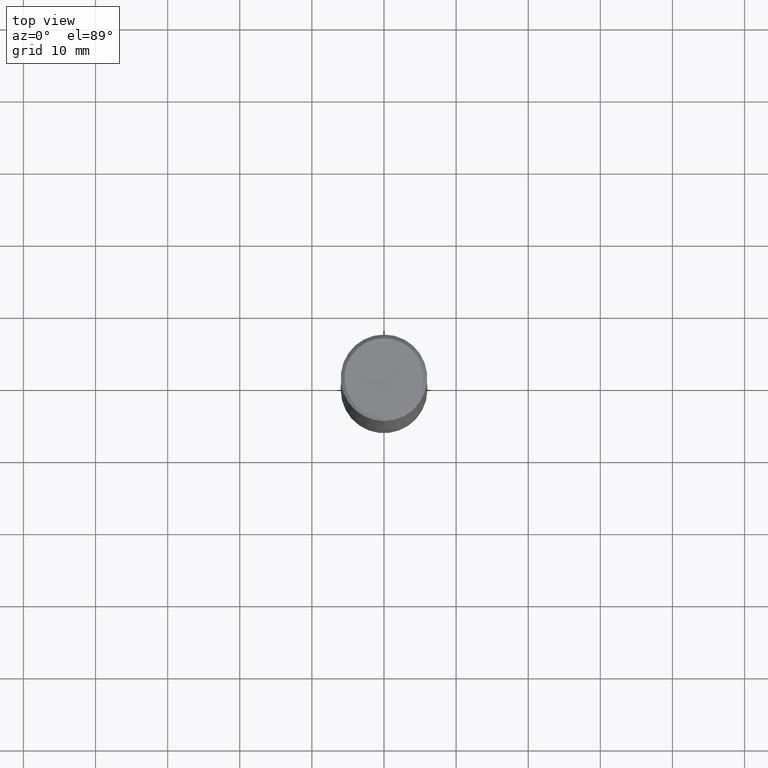
[diagram: clean part render]
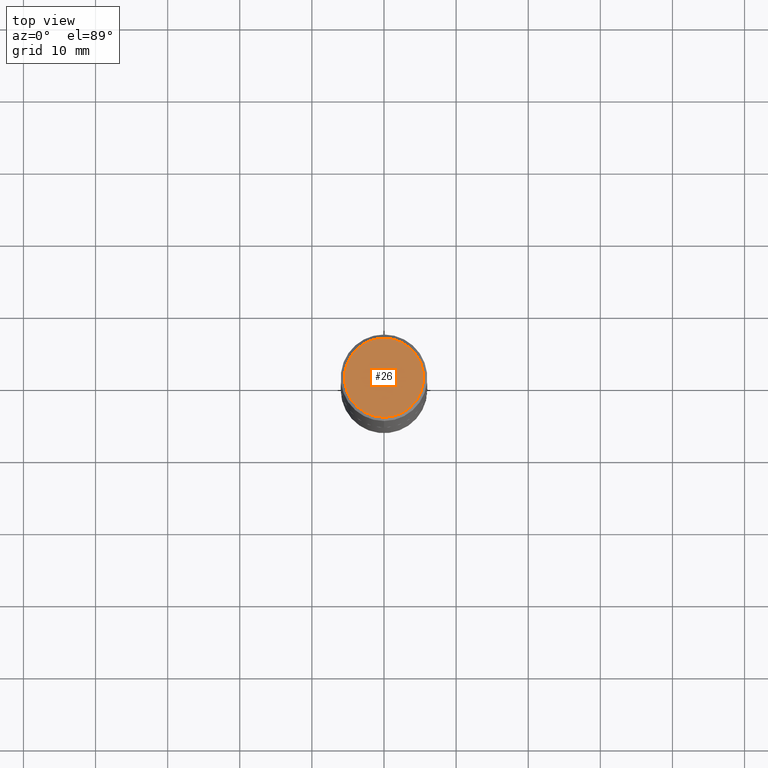
[diagram: same view with one face highlighted and labeled with its STEP entity id]
A machine part, top view. The second image highlights one B-rep face of the part: STEP entity #26.
In plain terms, the highlighted planar face has unit normal (0, -0, -1).
Its self-contained STEP definition (entity closure, byte-faithful):
#2 = VERTEX_POINT ( 'NONE', #379 ) ;
#4 = VERTEX_POINT ( 'NONE', #373 ) ;
#26 = ADVANCED_FACE ( 'NONE', ( #127 ), #376, .F. ) ;
#31 = AXIS2_PLACEMENT_3D ( 'NONE', #318, #33, #197 ) ;
#33 = DIRECTION ( 'NONE',  ( -2.445136991832956056E-29, 3.491956515881168560E-15, 1.000000000000000000 ) ) ;
#58 = CARTESIAN_POINT ( 'NONE',  ( 1.509716530915770915E-15, 0.2162000000000000310, -7.741179383011501957E-16 ) ) ;
#69 = CARTESIAN_POINT ( 'NONE',  ( 9.368268317429773980E-46, -1.337903998951356127E-31, -3.831387913528317122E-17 ) ) ;
#82 = CIRCLE ( 'NONE', #31, 0.2162000000000000310 ) ;
#127 = FACE_OUTER_BOUND ( 'NONE', #365, .T. ) ;
#197 = DIRECTION ( 'NONE',  ( -6.982962677686265922E-15, -1.000000000000000000, 3.491956515881168955E-15 ) ) ;
#214 = DIRECTION ( 'NONE',  ( 6.982962677686265922E-15, 1.000000000000000000, -3.491956515881168560E-15 ) ) ;
#218 = CIRCLE ( 'NONE', #352, 0.2162000000000000310 ) ;
#231 = EDGE_CURVE ( 'NONE', #2, #4, #82, .T. ) ;
#268 = DIRECTION ( 'NONE',  ( -2.445136991832956056E-29, 3.491956515881168560E-15, 1.000000000000000000 ) ) ;
#270 = DIRECTION ( 'NONE',  ( -6.982962677686265922E-15, -1.000000000000000000, 3.491956515881168955E-15 ) ) ;
#312 = DIRECTION ( 'NONE',  ( 2.445136991832955495E-29, -3.491956515881168560E-15, -1.000000000000000000 ) ) ;
#318 = CARTESIAN_POINT ( 'NONE',  ( 9.368268317429773980E-46, -1.337903998951356127E-31, -3.831387913528317122E-17 ) ) ;
#329 = ORIENTED_EDGE ( 'NONE', *, *, #380, .T. ) ;
#352 = AXIS2_PLACEMENT_3D ( 'NONE', #69, #268, #270 ) ;
#358 = ORIENTED_EDGE ( 'NONE', *, *, #231, .T. ) ;
#365 = EDGE_LOOP ( 'NONE', ( #329, #358 ) ) ;
#373 = CARTESIAN_POINT ( 'NONE',  ( 1.579546157692633819E-15, 0.2162000000000000310, -7.932748778687920586E-16 ) ) ;
#376 = PLANE ( 'NONE',  #384 ) ;
#379 = CARTESIAN_POINT ( 'NONE',  ( -1.551844647095920339E-15, -0.2162000000000000310, 7.166471195982256915E-16 ) ) ;
#380 = EDGE_CURVE ( 'NONE', #4, #2, #218, .T. ) ;
#384 = AXIS2_PLACEMENT_3D ( 'NONE', #58, #312, #214 ) ;